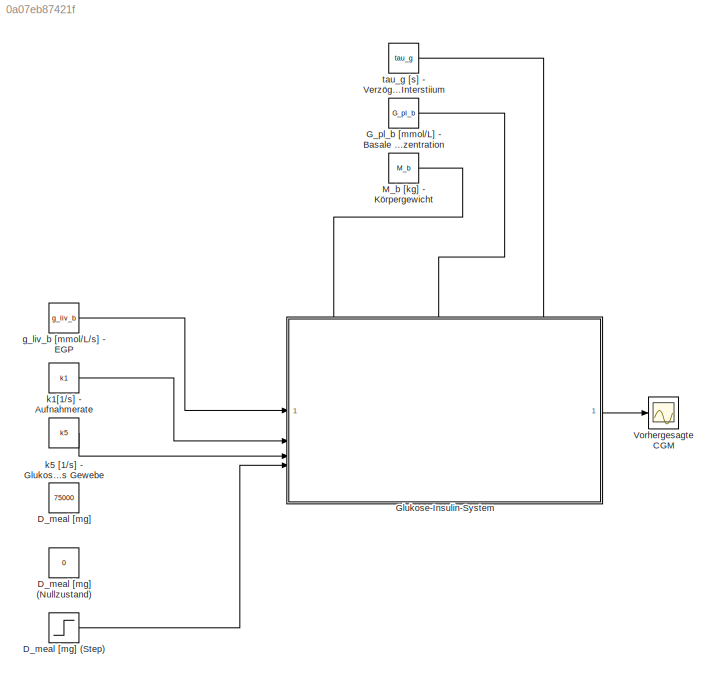
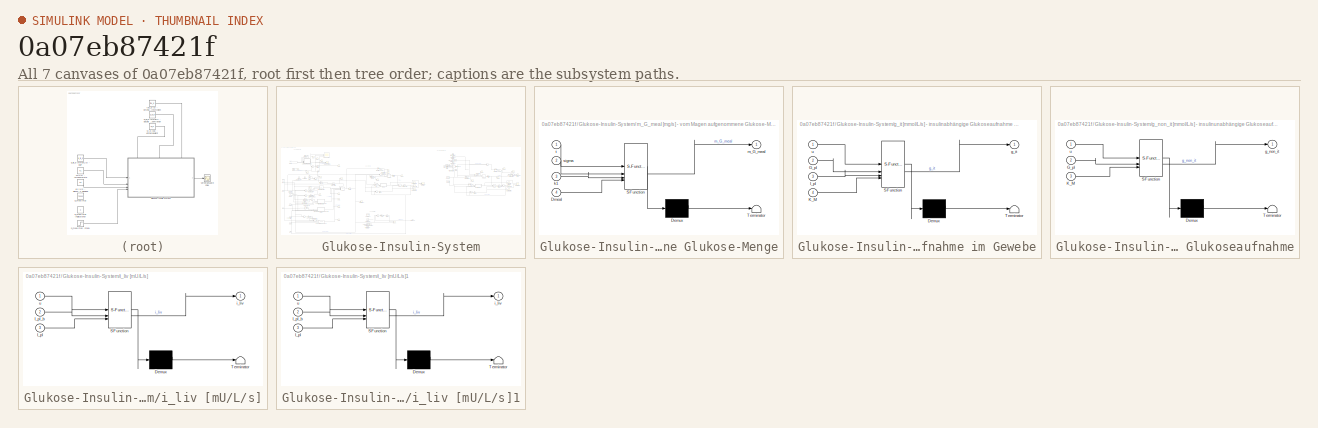
[diagram: thumbnail index - all 7 canvases of the model, root first then tree order]
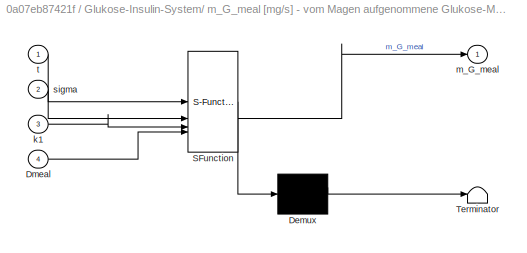
MODEL slx_0a07eb87421f
KIND model
CONFIG AbsTol = auto
CONFIG EnableMultiTasking = off
CONFIG FixedStep = auto
CONFIG MaxStep = auto
CONFIG MinStep = auto
CONFIG RelTol = 1e-3
CONFIG SampleTimeConstraint = Unconstrained
CONFIG SolverName = VariableStepAuto
CONFIG StartTime = 0.0
CONFIG StopTime = 24*3600
BLOCK [Constant] D_meal [mg]
  Value = 75000
BLOCK [Constant] D_meal [mg] (Nullzustand)
  Value = 0
BLOCK [Step] D_meal [mg] (Step)
  After = 75000
  SampleTime = 0
BLOCK [Constant] G_pl_b [mmol//L] - Basale Glukosekonzentration
  Value = G_pl_b
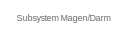
[diagram: Glukose-Insulin-System - part 1/10, top left region]
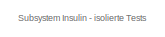
[diagram: Glukose-Insulin-System - part 2/10, top right region]
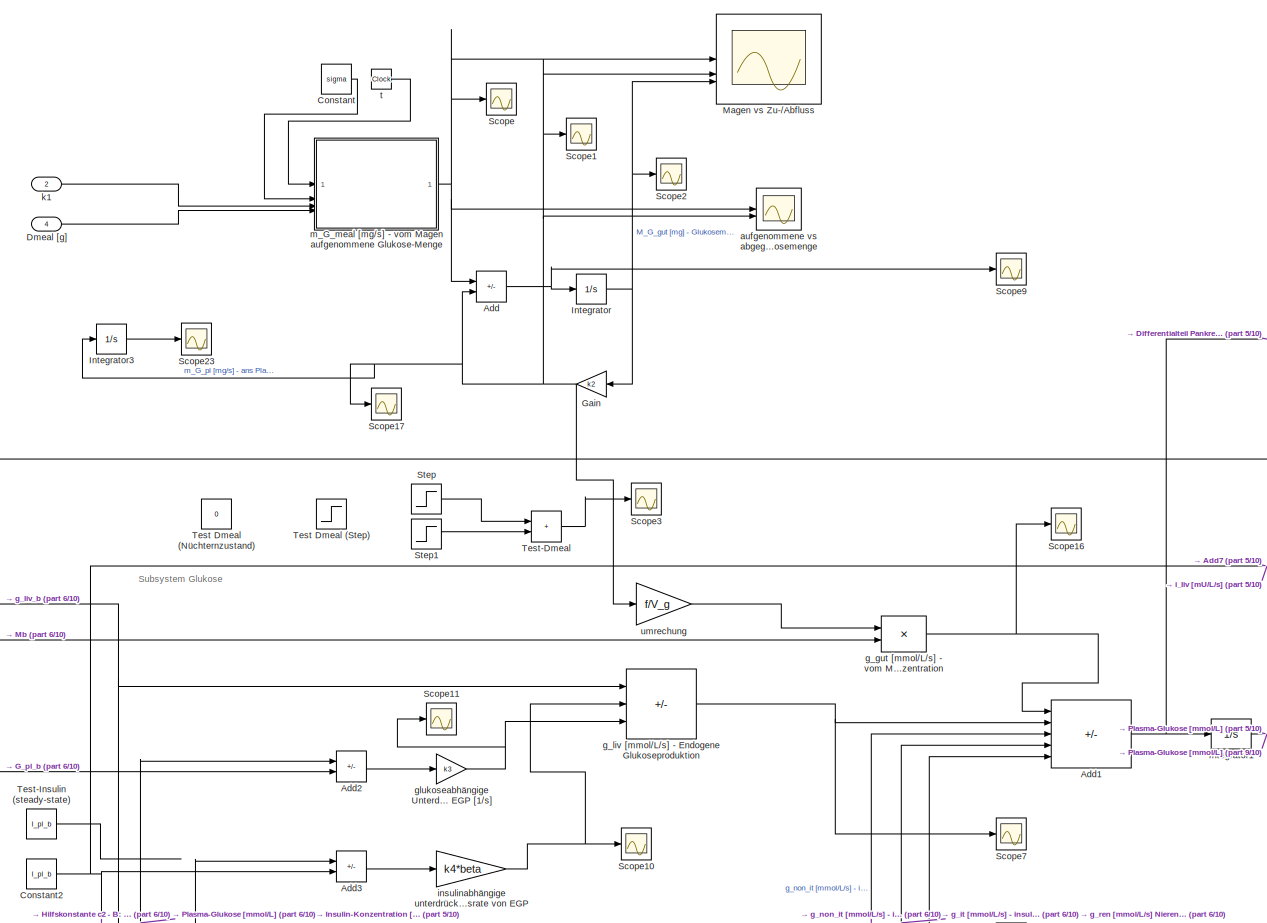
[diagram: Glukose-Insulin-System - part 3/10, top left region]
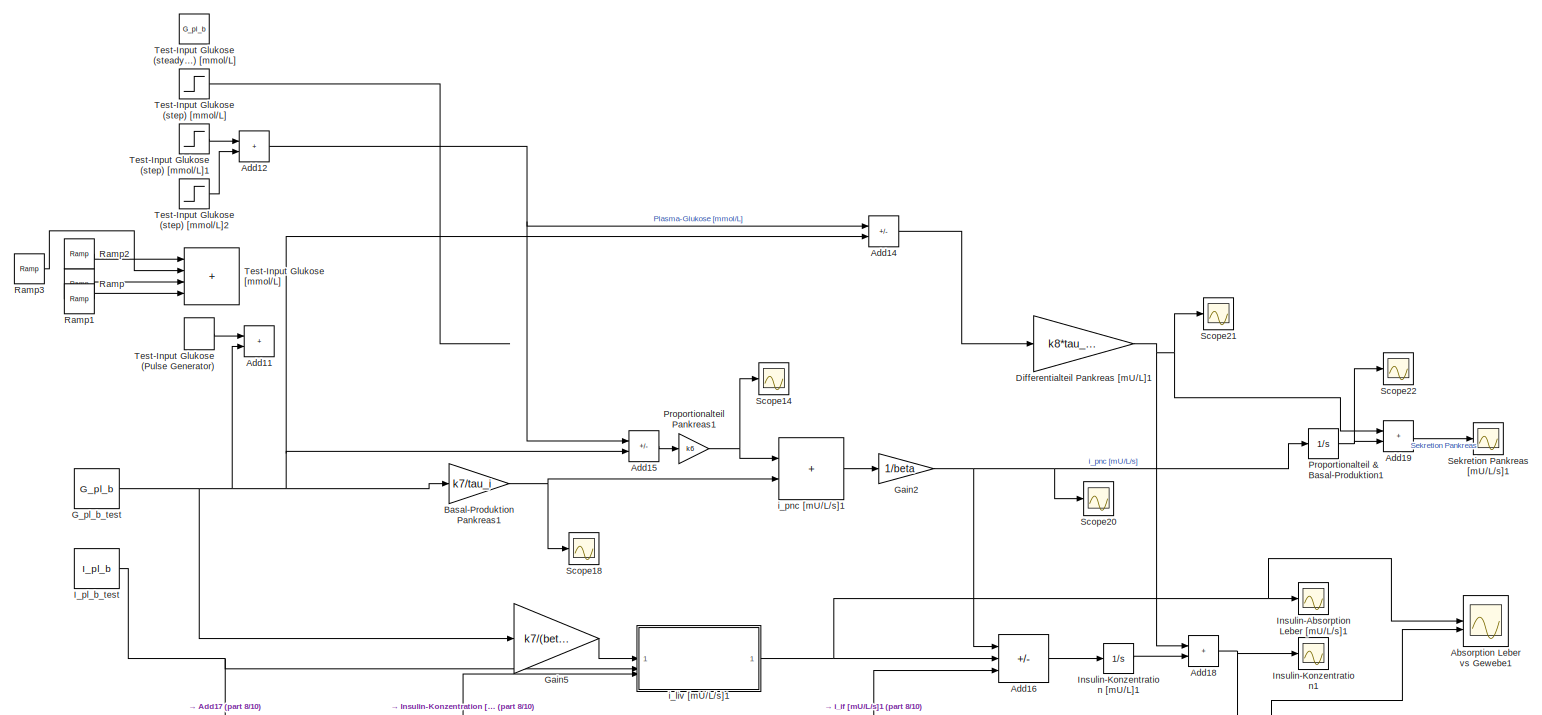
[diagram: Glukose-Insulin-System - part 4/10, top right region]
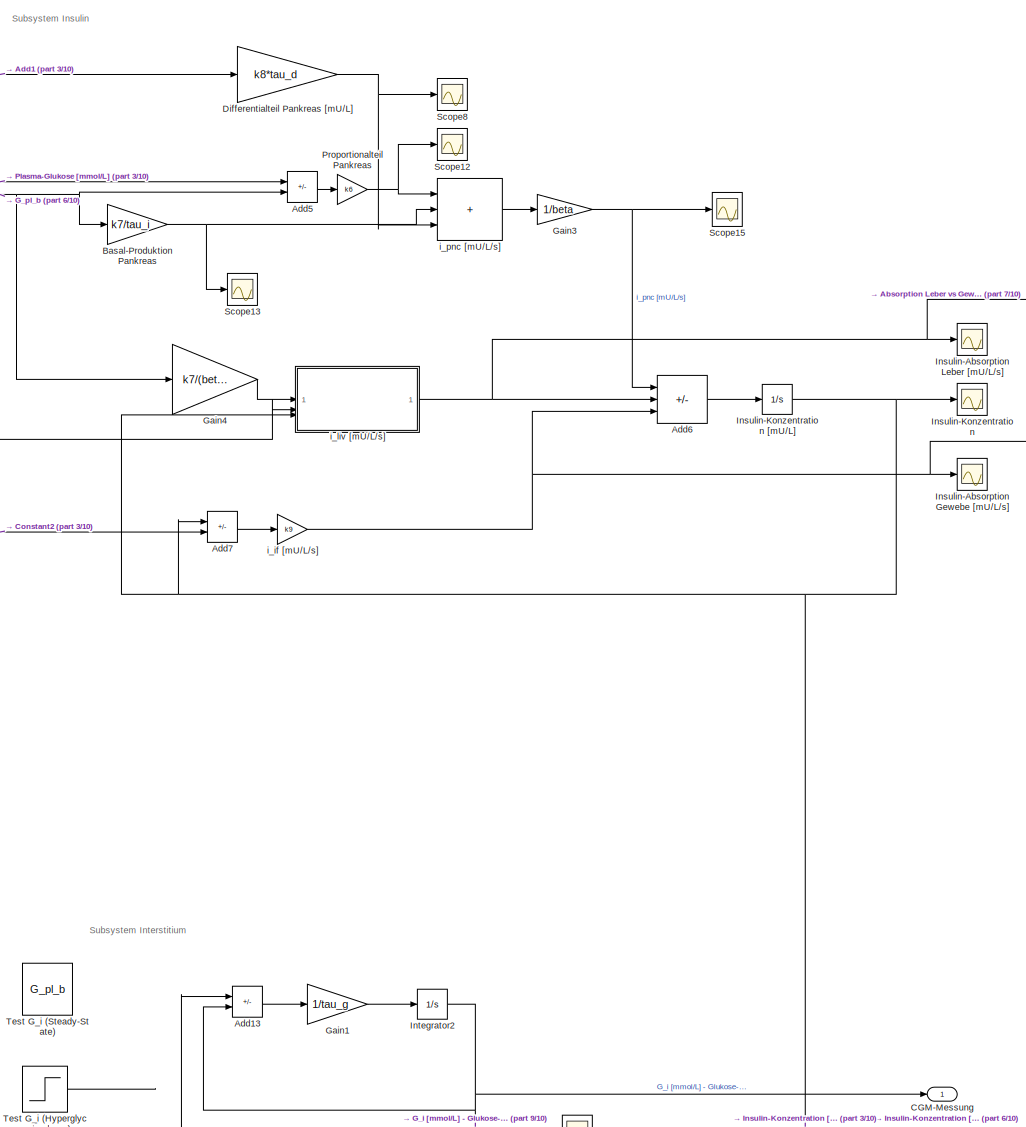
[diagram: Glukose-Insulin-System - part 5/10, central region]
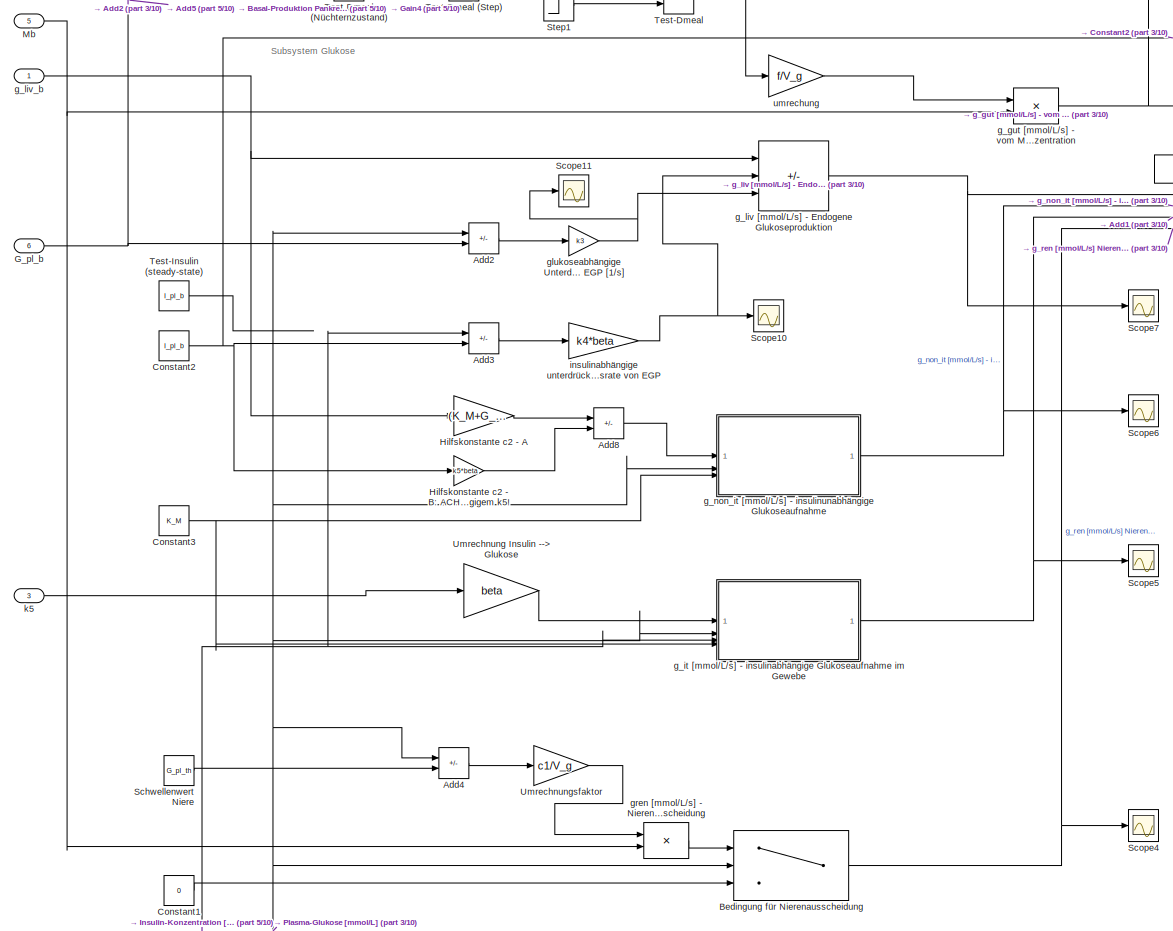
[diagram: Glukose-Insulin-System - part 6/10, middle left region]
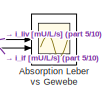
[diagram: Glukose-Insulin-System - part 7/10, central region]
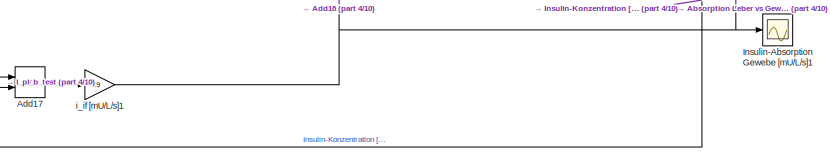
[diagram: Glukose-Insulin-System - part 8/10, middle right region]
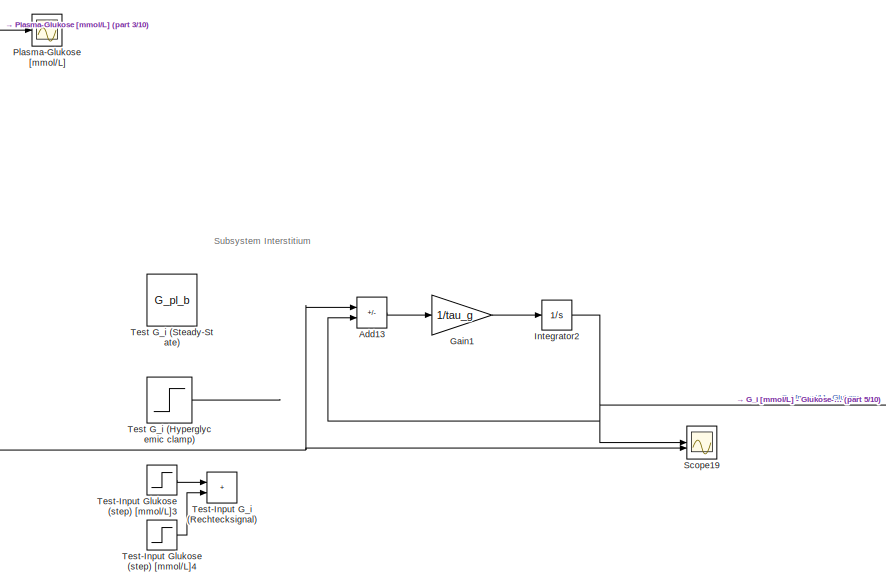
[diagram: Glukose-Insulin-System - part 9/10, bottom center region]
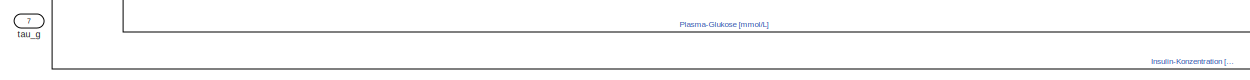
[diagram: Glukose-Insulin-System - part 10/10, bottom left region]
BLOCK [SubSystem] Glukose-Insulin-System
  PortSchema = {"entries":[{"content":{"sides":[{"content":{"connectorIds":["In1","In2","In3","In4"]},"type":"ConnectorPlacement.EquallySpacedRectSide","uuid":"b377c328-605a-4d46-a4e7-39b7223e9b7d"},{"content":{"connectorIds":["Out1"],"side":"RIGHT"},"type":"ConnectorPlacement.EquallySpacedRectSide","uuid":"aaea36f4-9533-44df-9aef-402e5d4a10bb"},{"content":{"connectorIds":["In5","In6","In7"],"side":"TOP"},"type"...<+275ch>
BLOCK [SubSystem] Glukose-Insulin-System/ m_G_meal [mg//s] - vom Magen aufgenommene Glukose-Menge
  ErrorFcn = Stateflow.Translate.translate
  PermitHierarchicalResolution = ExplicitOnly
  SFBlockType = MATLAB Function
  TreatAsAtomicUnit = on
BLOCK [Demux] Glukose-Insulin-System/ m_G_meal [mg//s] - vom Magen aufgenommene Glukose-Menge/ Demux 
  Outputs = 1
BLOCK [S-Function] Glukose-Insulin-System/ m_G_meal [mg//s] - vom Magen aufgenommene Glukose-Menge/ SFunction 
  EnableBusSupport = on
  FunctionName = sf_sfun
  PortCounts = [4 2]
  SFcnIsStateOwnerBlock = off
  SFunctionDeploymentMode = off
  Tag = Stateflow S-Function 2
BLOCK [Terminator] Glukose-Insulin-System/ m_G_meal [mg//s] - vom Magen aufgenommene Glukose-Menge/ Terminator 
BLOCK [Inport] Glukose-Insulin-System/ m_G_meal [mg//s] - vom Magen aufgenommene Glukose-Menge/Dmeal
  Port = 4
BLOCK [Inport] Glukose-Insulin-System/ m_G_meal [mg//s] - vom Magen aufgenommene Glukose-Menge/k1
  Port = 3
BLOCK [Outport] Glukose-Insulin-System/ m_G_meal [mg//s] - vom Magen aufgenommene Glukose-Menge/m_G_meal
BLOCK [Inport] Glukose-Insulin-System/ m_G_meal [mg//s] - vom Magen aufgenommene Glukose-Menge/sigma
  Port = 2
BLOCK [Inport] Glukose-Insulin-System/ m_G_meal [mg//s] - vom Magen aufgenommene Glukose-Menge/t
BLOCK [Scope] Glukose-Insulin-System/Absorption Leber vs Gewebe
  Floating = off
  NumInputPorts = 2
  ScopeSpecificationString = Simulink.scopes.TimeScopeBlockCfg('CurrentConfiguration', extmgr.ConfigurationSet(extmgr.Configuration('Core','General UI',true),extmgr.Configuration('Core','Source UI',true),extmgr.Configuration('Sources','WiredSimulink',true,'DataLoggingVariableName','ScopeData3'),extmgr.Configuration('Visuals','Time Domain',true,'SerializedDisplays',{struct('MinYLimReal','-0.00123','MaxYLimReal','0.01109','YLab...<+1891ch>
BLOCK [Scope] Glukose-Insulin-System/Absorption Leber vs Gewebe1
  Floating = off
  NumInputPorts = 2
  ScopeSpecificationString = Simulink.scopes.TimeScopeBlockCfg('CurrentConfiguration', extmgr.ConfigurationSet(extmgr.Configuration('Core','General UI',true),extmgr.Configuration('Core','Source UI',true),extmgr.Configuration('Sources','WiredSimulink',true,'DataLoggingVariableName','ScopeData1'),extmgr.Configuration('Visuals','Time Domain',true,'SerializedDisplays',{struct('MinYLimReal','-0.00478','MaxYLimReal','0.04306','YLab...<+1893ch>
BLOCK [Sum] Glukose-Insulin-System/Add
  IconShape = rectangular
  Inputs = +-
BLOCK [Sum] Glukose-Insulin-System/Add1
  IconShape = rectangular
  Inputs = ++---
BLOCK [Sum] Glukose-Insulin-System/Add11
  IconShape = rectangular
BLOCK [Sum] Glukose-Insulin-System/Add12
  IconShape = rectangular
BLOCK [Sum] Glukose-Insulin-System/Add13
  IconShape = rectangular
  Inputs = +-
BLOCK [Sum] Glukose-Insulin-System/Add14
  IconShape = rectangular
  Inputs = +-
BLOCK [Sum] Glukose-Insulin-System/Add15
  IconShape = rectangular
  Inputs = +-
BLOCK [Sum] Glukose-Insulin-System/Add16
  IconShape = rectangular
  Inputs = +--
BLOCK [Sum] Glukose-Insulin-System/Add17
  IconShape = rectangular
  Inputs = +-
BLOCK [Sum] Glukose-Insulin-System/Add18
  IconShape = rectangular
BLOCK [Sum] Glukose-Insulin-System/Add19
  IconShape = rectangular
BLOCK [Sum] Glukose-Insulin-System/Add2
  IconShape = rectangular
  Inputs = +-
BLOCK [Sum] Glukose-Insulin-System/Add3
  IconShape = rectangular
  Inputs = +-
BLOCK [Sum] Glukose-Insulin-System/Add4
  IconShape = rectangular
  Inputs = +-
BLOCK [Sum] Glukose-Insulin-System/Add5
  IconShape = rectangular
  Inputs = +-
BLOCK [Sum] Glukose-Insulin-System/Add6
  IconShape = rectangular
  Inputs = +--
BLOCK [Sum] Glukose-Insulin-System/Add7
  IconShape = rectangular
  Inputs = +-
BLOCK [Sum] Glukose-Insulin-System/Add8
  IconShape = rectangular
  Inputs = +-
BLOCK [Gain] Glukose-Insulin-System/Basal-Produktion Pankreas
  Gain = k7/tau_i
BLOCK [Gain] Glukose-Insulin-System/Basal-Produktion Pankreas1
  Gain = k7/tau_i
BLOCK [Switch] Glukose-Insulin-System/Bedingung für Nierenausscheidung
  Criteria = u2 > Threshold
  InputSameDT = off
  SaturateOnIntegerOverflow = off
  Threshold = G_pl_th
BLOCK [Outport] Glukose-Insulin-System/CGM-Messung
BLOCK [Constant] Glukose-Insulin-System/Constant
  Value = sigma
BLOCK [Constant] Glukose-Insulin-System/Constant1
  Value = 0
BLOCK [Constant] Glukose-Insulin-System/Constant2
  Value = I_pl_b
BLOCK [Constant] Glukose-Insulin-System/Constant3
  Value = K_M
BLOCK [Gain] Glukose-Insulin-System/Differentialteil Pankreas [mU//L]
  Gain = k8*tau_d
BLOCK [Gain] Glukose-Insulin-System/Differentialteil Pankreas [mU//L]1
  Gain = k8*tau_d/beta
BLOCK [Inport] Glukose-Insulin-System/Dmeal [g]
  Port = 4
BLOCK [Inport] Glukose-Insulin-System/G_pl_b
  Port = 6
BLOCK [Constant] Glukose-Insulin-System/G_pl_b_test
  Value = G_pl_b
BLOCK [Gain] Glukose-Insulin-System/Gain
  Gain = k2
BLOCK [Gain] Glukose-Insulin-System/Gain1
  Gain = 1/tau_g
BLOCK [Gain] Glukose-Insulin-System/Gain2
  Gain = 1/beta
BLOCK [Gain] Glukose-Insulin-System/Gain3
  Gain = 1/beta
BLOCK [Gain] Glukose-Insulin-System/Gain4
  Gain = k7/(beta*tau_i)
BLOCK [Gain] Glukose-Insulin-System/Gain5
  Gain = k7/(beta*tau_i)
BLOCK [Gain] Glukose-Insulin-System/Hilfskonstante c2 - A
  Gain = (K_M+G_pl_b)/G_pl_b
BLOCK [Gain] Glukose-Insulin-System/Hilfskonstante c2 - B: ACHTUNG bei zeitabhängigem k5!
  Gain = k5*beta
BLOCK [Constant] Glukose-Insulin-System/I_pl_b_test
  Value = I_pl_b
BLOCK [Scope] Glukose-Insulin-System/Insulin-Absorption Gewebe [mU//L//s]
  Floating = off
  NumInputPorts = 1
  ScopeSpecificationString = Simulink.scopes.TimeScopeBlockCfg('CurrentConfiguration', extmgr.ConfigurationSet(extmgr.Configuration('Core','General UI',true),extmgr.Configuration('Core','Source UI',true),extmgr.Configuration('Sources','WiredSimulink',true,'DataLoggingVariableName','ScopeData14'),extmgr.Configuration('Visuals','Time Domain',true,'SerializedDisplays',{struct('MinYLimReal','-0.00168','MaxYLimReal','0.00611','YLa...<+1491ch>
BLOCK [Scope] Glukose-Insulin-System/Insulin-Absorption Gewebe [mU//L//s]1
  Floating = off
  NumInputPorts = 1
  ScopeSpecificationString = Simulink.scopes.TimeScopeBlockCfg('CurrentConfiguration', extmgr.ConfigurationSet(extmgr.Configuration('Core','General UI',true),extmgr.Configuration('Core','Source UI',true),extmgr.Configuration('Sources','WiredSimulink',true,'DataLoggingVariableName','ScopeData2'),extmgr.Configuration('Visuals','Time Domain',true,'SerializedDisplays',{struct('MinYLimReal','-0.00168','MaxYLimReal','0.00611','YLab...<+1490ch>
BLOCK [Scope] Glukose-Insulin-System/Insulin-Absorption Leber [mU//L//s]
  Floating = off
  NumInputPorts = 1
  ScopeSpecificationString = Simulink.scopes.TimeScopeBlockCfg('CurrentConfiguration', extmgr.ConfigurationSet(extmgr.Configuration('Core','General UI',true),extmgr.Configuration('Core','Source UI',true),extmgr.Configuration('Sources','WiredSimulink',true,'DataLoggingVariableName','ScopeData15'),extmgr.Configuration('Visuals','Time Domain',true,'SerializedDisplays',{struct('MinYLimReal','-0.00002','MaxYLimReal','0.00032','YLa...<+1494ch>
BLOCK [Scope] Glukose-Insulin-System/Insulin-Absorption Leber [mU//L//s]1
  Floating = off
  NumInputPorts = 1
  ScopeSpecificationString = Simulink.scopes.TimeScopeBlockCfg('CurrentConfiguration', extmgr.ConfigurationSet(extmgr.Configuration('Core','General UI',true),extmgr.Configuration('Core','Source UI',true),extmgr.Configuration('Sources','WiredSimulink',true,'DataLoggingVariableName','ScopeData3'),extmgr.Configuration('Visuals','Time Domain',true,'SerializedDisplays',{struct('MinYLimReal','-0.00002','MaxYLimReal','0.00032','YLab...<+1493ch>
BLOCK [Scope] Glukose-Insulin-System/Insulin-Konzentration
  Floating = off
  NumInputPorts = 1
  ScopeSpecificationString = Simulink.scopes.TimeScopeBlockCfg('CurrentConfiguration', extmgr.ConfigurationSet(extmgr.Configuration('Core','General UI',true),extmgr.Configuration('Core','Source UI',true),extmgr.Configuration('Sources','WiredSimulink',true,'DataLoggingVariableName','ScopeData12'),extmgr.Configuration('Visuals','Time Domain',true,'SerializedDisplays',{struct('MinYLimReal','-0.34918','MaxYLimReal','68.0835','YLa...<+1954ch>
BLOCK [Integrator] Glukose-Insulin-System/Insulin-Konzentration [mU//L]
  InitialCondition = I_pl_b
BLOCK [Integrator] Glukose-Insulin-System/Insulin-Konzentration [mU//L]1
  InitialCondition = I_pl_b
BLOCK [Scope] Glukose-Insulin-System/Insulin-Konzentration1
  Floating = off
  NumInputPorts = 1
  ScopeSpecificationString = Simulink.scopes.TimeScopeBlockCfg('CurrentConfiguration', extmgr.ConfigurationSet(extmgr.Configuration('Core','General UI',true),extmgr.Configuration('Core','Source UI',true),extmgr.Configuration('Sources','WiredSimulink',true,'DataLoggingVariableName','ScopeData4'),extmgr.Configuration('Visuals','Time Domain',true,'SerializedDisplays',{struct('MinYLimReal','-20.08119','MaxYLimReal','245.73069','Y...<+1891ch>
BLOCK [Integrator] Glukose-Insulin-System/Integrator
BLOCK [Integrator] Glukose-Insulin-System/Integrator1
  InitialCondition = G_pl_b
BLOCK [Integrator] Glukose-Insulin-System/Integrator2
  InitialCondition = G_pl_b
BLOCK [Integrator] Glukose-Insulin-System/Integrator3
BLOCK [Scope] Glukose-Insulin-System/Magen vs Zu-//Abfluss
  Floating = off
  NumInputPorts = 3
  ScopeSpecificationString = Simulink.scopes.TimeScopeBlockCfg('CurrentConfiguration', extmgr.ConfigurationSet(extmgr.Configuration('Core','General UI',true),extmgr.Configuration('Core','Source UI',true),extmgr.Configuration('Sources','WiredSimulink',true,'DataLoggingVariableName','ScopeData4'),extmgr.Configuration('Visuals','Time Domain',true,'SerializedDisplays',{struct('MinYLimReal','-146.5025','MaxYLimReal','1318.52251','...<+1979ch>
BLOCK [Inport] Glukose-Insulin-System/Mb
  Port = 5
BLOCK [Scope] Glukose-Insulin-System/Plasma-Glukose [mmol//L]
  Floating = off
  NumInputPorts = 1
  ScopeSpecificationString = Simulink.scopes.TimeScopeBlockCfg('CurrentConfiguration', extmgr.ConfigurationSet(extmgr.Configuration('Core','General UI',true),extmgr.Configuration('Core','Source UI',true),extmgr.Configuration('Sources','WiredSimulink',true,'DataLoggingVariableName','ScopeData7'),extmgr.Configuration('Visuals','Time Domain',true,'SerializedDisplays',{struct('MinYLimReal','3.99359','MaxYLimReal','6.36263','YLabe...<+2041ch>
BLOCK [Integrator] Glukose-Insulin-System/Proportionalteil & Basal-Produktion1
BLOCK [Gain] Glukose-Insulin-System/Proportionalteil Pankreas
  Gain = k6
BLOCK [Gain] Glukose-Insulin-System/Proportionalteil Pankreas1
  Gain = k6
BLOCK [Reference] Glukose-Insulin-System/Ramp  REF=simulink/Sources/Ramp
  SourceBlock = simulink/Sources/Ramp
  SourceType = Ramp
BLOCK [Reference] Glukose-Insulin-System/Ramp1  REF=simulink/Sources/Ramp
  SourceBlock = simulink/Sources/Ramp
  SourceType = Ramp
BLOCK [Reference] Glukose-Insulin-System/Ramp2  REF=simulink/Sources/Ramp
  SourceBlock = simulink/Sources/Ramp
  SourceType = Ramp
BLOCK [Reference] Glukose-Insulin-System/Ramp3  REF=simulink/Sources/Ramp
  SourceBlock = simulink/Sources/Ramp
  SourceType = Ramp
BLOCK [Constant] Glukose-Insulin-System/Schwellenwert Niere
  Value = G_pl_th
BLOCK [Scope] Glukose-Insulin-System/Scope
  Floating = off
  NumInputPorts = 1
  ScopeSpecificationString = Simulink.scopes.TimeScopeBlockCfg('CurrentConfiguration', extmgr.ConfigurationSet(extmgr.Configuration('Core','General UI',true),extmgr.Configuration('Core','Source UI',true),extmgr.Configuration('Sources','WiredSimulink',true,'DataLoggingVariableName','ScopeData2'),extmgr.Configuration('Visuals','Time Domain',true,'SerializedDisplays',{struct('MinYLimReal','-0.99019','MaxYLimReal','8.9117','YLabe...<+1518ch>
BLOCK [Scope] Glukose-Insulin-System/Scope1
  Floating = off
  NumInputPorts = 1
  ScopeSpecificationString = Simulink.scopes.TimeScopeBlockCfg('CurrentConfiguration', extmgr.ConfigurationSet(extmgr.Configuration('Core','General UI',true),extmgr.Configuration('Core','Source UI',true),extmgr.Configuration('Sources','WiredSimulink',true,'DataLoggingVariableName','ScopeData3'),extmgr.Configuration('Visuals','Time Domain',true,'SerializedDisplays',{struct('MinYLimReal','-0.98992','MaxYLimReal','8.90927','YLab...<+1560ch>
BLOCK [Scope] Glukose-Insulin-System/Scope10
  Floating = off
  NumInputPorts = 1
  ScopeSpecificationString = Simulink.scopes.TimeScopeBlockCfg('CurrentConfiguration', extmgr.ConfigurationSet(extmgr.Configuration('Core','General UI',true),extmgr.Configuration('Core','Source UI',true),extmgr.Configuration('Sources','WiredSimulink',true,'DataLoggingVariableName','ScopeData1'),extmgr.Configuration('Visuals','Time Domain',true,'SerializedDisplays',{struct('MinYLimReal','-0.00011','MaxYLimReal','0.00103','YLab...<+1701ch>
BLOCK [Scope] Glukose-Insulin-System/Scope11
  Floating = off
  NumInputPorts = 1
  ScopeSpecificationString = Simulink.scopes.TimeScopeBlockCfg('CurrentConfiguration', extmgr.ConfigurationSet(extmgr.Configuration('Core','General UI',true),extmgr.Configuration('Core','Source UI',true),extmgr.Configuration('Sources','WiredSimulink',true,'DataLoggingVariableName','ScopeData2'),extmgr.Configuration('Visuals','Time Domain',true,'SerializedDisplays',{struct('MinYLimReal','-0.0000005','MaxYLimReal','0.0000022','...<+1595ch>
BLOCK [Scope] Glukose-Insulin-System/Scope12
  Floating = off
  NumInputPorts = 1
  ScopeSpecificationString = Simulink.scopes.TimeScopeBlockCfg('CurrentConfiguration', extmgr.ConfigurationSet(extmgr.Configuration('Core','General UI',true),extmgr.Configuration('Core','Source UI',true),extmgr.Configuration('Sources','WiredSimulink',true,'DataLoggingVariableName','ScopeData16'),extmgr.Configuration('Visuals','Time Domain',true,'SerializedDisplays',{struct('MinYLimReal','-0.00559','MaxYLimReal','0.02526','YLa...<+1684ch>
BLOCK [Scope] Glukose-Insulin-System/Scope13
  Floating = off
  NumInputPorts = 1
  ScopeSpecificationString = Simulink.scopes.TimeScopeBlockCfg('CurrentConfiguration', extmgr.ConfigurationSet(extmgr.Configuration('Core','General UI',true),extmgr.Configuration('Core','Source UI',true),extmgr.Configuration('Sources','WiredSimulink',true,'DataLoggingVariableName','ScopeData17'),extmgr.Configuration('Visuals','Time Domain',true,'SerializedDisplays',{struct('MinYLimReal','0.000041','MaxYLimReal','0.000061','YL...<+1974ch>
BLOCK [Scope] Glukose-Insulin-System/Scope14
  Floating = off
  NumInputPorts = 1
  ScopeSpecificationString = Simulink.scopes.TimeScopeBlockCfg('CurrentConfiguration', extmgr.ConfigurationSet(extmgr.Configuration('Core','General UI',true),extmgr.Configuration('Core','Source UI',true),extmgr.Configuration('Sources','WiredSimulink',true,'DataLoggingVariableName','ScopeData5'),extmgr.Configuration('Visuals','Time Domain',true,'SerializedDisplays',{struct('MinYLimReal','-0.00437','MaxYLimReal','0.01394','YLab...<+1683ch>
BLOCK [Scope] Glukose-Insulin-System/Scope15
  Floating = off
  NumInputPorts = 1
  ScopeSpecificationString = Simulink.scopes.TimeScopeBlockCfg('CurrentConfiguration', extmgr.ConfigurationSet(extmgr.Configuration('Core','General UI',true),extmgr.Configuration('Core','Source UI',true),extmgr.Configuration('Sources','WiredSimulink',true,'DataLoggingVariableName','ScopeData3'),extmgr.Configuration('Visuals','Time Domain',true,'SerializedDisplays',{struct('MinYLimReal','-0.00914','MaxYLimReal','0.04233','YLab...<+1929ch>
BLOCK [Scope] Glukose-Insulin-System/Scope16
  Floating = off
  NumInputPorts = 1
  ScopeSpecificationString = Simulink.scopes.TimeScopeBlockCfg('CurrentConfiguration', extmgr.ConfigurationSet(extmgr.Configuration('Core','General UI',true),extmgr.Configuration('Core','Source UI',true),extmgr.Configuration('Sources','WiredSimulink',true,'DataLoggingVariableName','ScopeData4'),extmgr.Configuration('Visuals','Time Domain',true,'SerializedDisplays',{struct('MinYLimReal','-0.00047','MaxYLimReal','0.00424','YLab...<+1983ch>
BLOCK [Scope] Glukose-Insulin-System/Scope17
  Floating = off
  NumInputPorts = 1
  ScopeSpecificationString = Simulink.scopes.TimeScopeBlockCfg('CurrentConfiguration', extmgr.ConfigurationSet(extmgr.Configuration('Core','General UI',true),extmgr.Configuration('Core','Source UI',true),extmgr.Configuration('Sources','WiredSimulink',true,'DataLoggingVariableName','ScopeData5'),extmgr.Configuration('Visuals','Time Domain',true,'SerializedDisplays',{struct('MinYLimReal','-1.54566','MaxYLimReal','13.91097','YLa...<+1899ch>
BLOCK [Scope] Glukose-Insulin-System/Scope18
  Floating = off
  NumInputPorts = 1
  ScopeSpecificationString = Simulink.scopes.TimeScopeBlockCfg('CurrentConfiguration', extmgr.ConfigurationSet(extmgr.Configuration('Core','General UI',true),extmgr.Configuration('Core','Source UI',true),extmgr.Configuration('Sources','WiredSimulink',true,'DataLoggingVariableName','ScopeData6'),extmgr.Configuration('Visuals','Time Domain',true,'SerializedDisplays',{struct('MinYLimReal','0.000041','MaxYLimReal','0.000061','YLa...<+1973ch>
BLOCK [Scope] Glukose-Insulin-System/Scope19
  Floating = off
  NumInputPorts = 2
  ScopeSpecificationString = Simulink.scopes.TimeScopeBlockCfg('CurrentConfiguration', extmgr.ConfigurationSet(extmgr.Configuration('Core','General UI',true),extmgr.Configuration('Core','Source UI',true),extmgr.Configuration('Sources','WiredSimulink',true,'DataLoggingVariableName','ScopeData2'),extmgr.Configuration('Visuals','Time Domain',true,'SerializedDisplays',{struct('MinYLimReal','6.92294','MaxYLimReal','6.9674','YLabel...<+2002ch>
BLOCK [Scope] Glukose-Insulin-System/Scope2
  Floating = off
  NumInputPorts = 1
  ScopeSpecificationString = Simulink.scopes.TimeScopeBlockCfg('CurrentConfiguration', extmgr.ConfigurationSet(extmgr.Configuration('Core','General UI',true),extmgr.Configuration('Core','Source UI',true),extmgr.Configuration('Sources','WiredSimulink',true,'DataLoggingVariableName','ScopeData1'),extmgr.Configuration('Visuals','Time Domain',true,'SerializedDisplays',{struct('MinYLimReal','-93.83118','MaxYLimReal','844.48066','Y...<+1515ch>
BLOCK [Scope] Glukose-Insulin-System/Scope20
  Floating = off
  NumInputPorts = 1
  ScopeSpecificationString = Simulink.scopes.TimeScopeBlockCfg('CurrentConfiguration', extmgr.ConfigurationSet(extmgr.Configuration('Core','General UI',true),extmgr.Configuration('Core','Source UI',true),extmgr.Configuration('Sources','WiredSimulink',true,'DataLoggingVariableName','ScopeData7'),extmgr.Configuration('Visuals','Time Domain',true,'SerializedDisplays',{struct('MinYLimReal','-0.00432','MaxYLimReal','0.01399','YLab...<+1625ch>
BLOCK [Scope] Glukose-Insulin-System/Scope21
  Floating = off
  NumInputPorts = 1
  ScopeSpecificationString = Simulink.scopes.TimeScopeBlockCfg('CurrentConfiguration', extmgr.ConfigurationSet(extmgr.Configuration('Core','General UI',true),extmgr.Configuration('Core','Source UI',true),extmgr.Configuration('Sources','WiredSimulink',true,'DataLoggingVariableName','ScopeData8'),extmgr.Configuration('Visuals','Time Domain',true,'SerializedDisplays',{struct('MinYLimReal','-6.36458','MaxYLimReal','20.30002','YLa...<+1694ch>
BLOCK [Scope] Glukose-Insulin-System/Scope22
  Floating = off
  NumInputPorts = 1
  ScopeSpecificationString = Simulink.scopes.TimeScopeBlockCfg('CurrentConfiguration', extmgr.ConfigurationSet(extmgr.Configuration('Core','General UI',true),extmgr.Configuration('Core','Source UI',true),extmgr.Configuration('Sources','WiredSimulink',true,'DataLoggingVariableName','ScopeData9'),extmgr.Configuration('Visuals','Time Domain',true,'SerializedDisplays',{struct('MinYLimReal','-52.65693','MaxYLimReal','47.86931','YL...<+1652ch>
BLOCK [Scope] Glukose-Insulin-System/Scope23
  Floating = off
  NumInputPorts = 1
  ScopeSpecificationString = Simulink.scopes.TimeScopeBlockCfg('CurrentConfiguration', extmgr.ConfigurationSet(extmgr.Configuration('Core','General UI',true),extmgr.Configuration('Core','Source UI',true),extmgr.Configuration('Sources','WiredSimulink',true,'DataLoggingVariableName','ScopeData1'),extmgr.Configuration('Visuals','Time Domain',true,'SerializedDisplays',{struct('MinYLimReal','-9374.88287','MaxYLimReal','84373.94586...<+1790ch>
BLOCK [Scope] Glukose-Insulin-System/Scope3
  Floating = off
  NumInputPorts = 1
  ScopeSpecificationString = Simulink.scopes.TimeScopeBlockCfg('CurrentConfiguration', extmgr.ConfigurationSet(extmgr.Configuration('Core','General UI',true),extmgr.Configuration('Core','Source UI',true),extmgr.Configuration('Sources','WiredSimulink',true,'DataLoggingVariableName','ScopeData6'),extmgr.Configuration('Visuals','Time Domain',true,'SerializedDisplays',{struct('MinYLimReal','-0.78125','MaxYLimReal','7.03125','YLab...<+1489ch>
BLOCK [Scope] Glukose-Insulin-System/Scope4
  Floating = off
  NumInputPorts = 1
  ScopeSpecificationString = Simulink.scopes.TimeScopeBlockCfg('CurrentConfiguration', extmgr.ConfigurationSet(extmgr.Configuration('Core','General UI',true),extmgr.Configuration('Core','Source UI',true),extmgr.Configuration('Sources','WiredSimulink',true,'DataLoggingVariableName','ScopeData8'),extmgr.Configuration('Visuals','Time Domain',true,'SerializedDisplays',{struct('MinYLimReal','-1.00000','MaxYLimReal','1.00000','YLab...<+1564ch>
BLOCK [Scope] Glukose-Insulin-System/Scope5
  Floating = off
  NumInputPorts = 1
  ScopeSpecificationString = Simulink.scopes.TimeScopeBlockCfg('CurrentConfiguration', extmgr.ConfigurationSet(extmgr.Configuration('Core','General UI',true),extmgr.Configuration('Core','Source UI',true),extmgr.Configuration('Sources','WiredSimulink',true,'DataLoggingVariableName','ScopeData9'),extmgr.Configuration('Visuals','Time Domain',true,'SerializedDisplays',{struct('MinYLimReal','-0.00003','MaxYLimReal','0.00395','YLab...<+1887ch>
BLOCK [Scope] Glukose-Insulin-System/Scope6
  Floating = off
  NumInputPorts = 1
  ScopeSpecificationString = Simulink.scopes.TimeScopeBlockCfg('CurrentConfiguration', extmgr.ConfigurationSet(extmgr.Configuration('Core','General UI',true),extmgr.Configuration('Core','Source UI',true),extmgr.Configuration('Sources','WiredSimulink',true,'DataLoggingVariableName','ScopeData10'),extmgr.Configuration('Visuals','Time Domain',true,'SerializedDisplays',{struct('MinYLimReal','0.000348','MaxYLimReal','0.000367','YL...<+1619ch>
BLOCK [Scope] Glukose-Insulin-System/Scope7
  Floating = off
  NumInputPorts = 1
  ScopeSpecificationString = Simulink.scopes.TimeScopeBlockCfg('CurrentConfiguration', extmgr.ConfigurationSet(extmgr.Configuration('Core','General UI',true),extmgr.Configuration('Core','Source UI',true),extmgr.Configuration('Sources','WiredSimulink',true,'DataLoggingVariableName','ScopeData11'),extmgr.Configuration('Visuals','Time Domain',true,'SerializedDisplays',{struct('MinYLimReal','-0.00029','MaxYLimReal','0.00077','YLa...<+1955ch>
BLOCK [Scope] Glukose-Insulin-System/Scope8
  Floating = off
  NumInputPorts = 1
  ScopeSpecificationString = Simulink.scopes.TimeScopeBlockCfg('CurrentConfiguration', extmgr.ConfigurationSet(extmgr.Configuration('Core','General UI',true),extmgr.Configuration('Core','Source UI',true),extmgr.Configuration('Sources','WiredSimulink',true,'DataLoggingVariableName','ScopeData2'),extmgr.Configuration('Visuals','Time Domain',true,'SerializedDisplays',{struct('MinYLimReal','-0.01587','MaxYLimReal','0.03306','YLab...<+1690ch>
BLOCK [Scope] Glukose-Insulin-System/Scope9
  Floating = off
  NumInputPorts = 1
  ScopeSpecificationString = Simulink.scopes.TimeScopeBlockCfg('CurrentConfiguration', extmgr.ConfigurationSet(extmgr.Configuration('Core','General UI',true),extmgr.Configuration('Core','Source UI',true),extmgr.Configuration('Sources','WiredSimulink',true,'DataLoggingVariableName','ScopeData1'),extmgr.Configuration('Visuals','Time Domain',true,'SerializedDisplays',{struct('MinYLimReal','-0.59467','MaxYLimReal','3.59143','YLab...<+1871ch>
BLOCK [Scope] Glukose-Insulin-System/Sekretion Pankreas [mU//L//s]1
  Floating = off
  NumInputPorts = 1
  ScopeSpecificationString = Simulink.scopes.TimeScopeBlockCfg('CurrentConfiguration', extmgr.ConfigurationSet(extmgr.Configuration('Core','General UI',true),extmgr.Configuration('Core','Source UI',true),extmgr.Configuration('Sources','WiredSimulink',true,'DataLoggingVariableName','ScopeData10'),extmgr.Configuration('Visuals','Time Domain',true,'SerializedDisplays',{struct('MinYLimReal','-34.83592','MaxYLimReal','81.31692','Y...<+1987ch>
BLOCK [Step] Glukose-Insulin-System/Step
  After = 6.25
  SampleTime = 0
  Time = 100
BLOCK [Step] Glukose-Insulin-System/Step1
  After = -6.25
  SampleTime = 12100
  Time = 12100
BLOCK [Constant] Glukose-Insulin-System/Test Dmeal (Nüchternzustand)
  Value = 0
BLOCK [Step] Glukose-Insulin-System/Test Dmeal (Step)
  After = 0.6
  SampleTime = 0
  Time = 0
BLOCK [Step] Glukose-Insulin-System/Test G_i (Hyperglycemic clamp)
  After = 10
  Before = G_pl_b
  SampleTime = 0
  Time = 0
BLOCK [Constant] Glukose-Insulin-System/Test G_i (Steady-State)
  Value = G_pl_b
BLOCK [Sum] Glukose-Insulin-System/Test-Dmeal
  IconShape = rectangular
BLOCK [Sum] Glukose-Insulin-System/Test-Input G_i (Rechtecksignal)
  IconShape = rectangular
BLOCK [Sum] Glukose-Insulin-System/Test-Input Glukose  [mmol//L]
  IconShape = rectangular
  Inputs = ++++
BLOCK [DiscretePulseGenerator] Glukose-Insulin-System/Test-Input Glukose (Pulse Generator)
  Amplitude = 10
  Period = 14400
  PulseType = Time based
  PulseWidth = 8
BLOCK [Constant] Glukose-Insulin-System/Test-Input Glukose (steadystate) [mmol//L]
  Value = G_pl_b
BLOCK [Step] Glukose-Insulin-System/Test-Input Glukose (step) [mmol//L]
  After = 10
  Before = G_pl_b
  SampleTime = 0
  Time = 100
BLOCK [Step] Glukose-Insulin-System/Test-Input Glukose (step) [mmol//L]1
  After = 10
  Before = G_pl_b
  SampleTime = 0
  Time = 100
BLOCK [Step] Glukose-Insulin-System/Test-Input Glukose (step) [mmol//L]2
  After = -(10-G_pl_b)
  SampleTime = 0
  Time = 7300
BLOCK [Step] Glukose-Insulin-System/Test-Input Glukose (step) [mmol//L]3
  After = 15
  Before = G_pl_b
  SampleTime = 0
  Time = 100
BLOCK [Step] Glukose-Insulin-System/Test-Input Glukose (step) [mmol//L]4
  After = -(15-G_pl_b)
  SampleTime = 0
  Time = 7300
BLOCK [Constant] Glukose-Insulin-System/Test-Insulin (steady-state)
  Value = I_pl_b
BLOCK [Gain] Glukose-Insulin-System/Umrechnung Insulin --> Glukose
  Gain = beta
BLOCK [Gain] Glukose-Insulin-System/Umrechnungsfaktor
  Gain = c1/V_g
BLOCK [Scope] Glukose-Insulin-System/aufgenommene vs abgegebene Glukosemenge
  Floating = off
  NumInputPorts = 2
  ScopeSpecificationString = Simulink.scopes.TimeScopeBlockCfg('CurrentConfiguration', extmgr.ConfigurationSet(extmgr.Configuration('Core','General UI',true),extmgr.Configuration('Core','Source UI',true),extmgr.Configuration('Sources','WiredSimulink',true,'DataLoggingVariableName','ScopeData5'),extmgr.Configuration('Visuals','Time Domain',true,'SerializedDisplays',{struct('MinYLimReal','0.18846','MaxYLimReal','13.93441','YLab...<+2007ch>
BLOCK [Product] Glukose-Insulin-System/g_gut [mmol//L//s] - vom Magen aufgenommene Glukosemenge als Konzentration
  Inputs = */
  Multiplication = Matrix(*)
BLOCK [SubSystem] Glukose-Insulin-System/g_it [mmol//L//s] - insulinabhängige Glukoseaufnahme im Gewebe
  ErrorFcn = Stateflow.Translate.translate
  PermitHierarchicalResolution = ExplicitOnly
  SFBlockType = MATLAB Function
  TreatAsAtomicUnit = on
BLOCK [Demux] Glukose-Insulin-System/g_it [mmol//L//s] - insulinabhängige Glukoseaufnahme im Gewebe/ Demux 
  Outputs = 1
BLOCK [S-Function] Glukose-Insulin-System/g_it [mmol//L//s] - insulinabhängige Glukoseaufnahme im Gewebe/ SFunction 
  EnableBusSupport = on
  FunctionName = sf_sfun
  PortCounts = [4 2]
  SFcnIsStateOwnerBlock = off
  SFunctionDeploymentMode = off
  Tag = Stateflow S-Function 3
BLOCK [Terminator] Glukose-Insulin-System/g_it [mmol//L//s] - insulinabhängige Glukoseaufnahme im Gewebe/ Terminator 
BLOCK [Inport] Glukose-Insulin-System/g_it [mmol//L//s] - insulinabhängige Glukoseaufnahme im Gewebe/G_pl
  Port = 2
BLOCK [Inport] Glukose-Insulin-System/g_it [mmol//L//s] - insulinabhängige Glukoseaufnahme im Gewebe/I_pl
  Port = 3
BLOCK [Inport] Glukose-Insulin-System/g_it [mmol//L//s] - insulinabhängige Glukoseaufnahme im Gewebe/K_M
  Port = 4
BLOCK [Outport] Glukose-Insulin-System/g_it [mmol//L//s] - insulinabhängige Glukoseaufnahme im Gewebe/g_it
BLOCK [Inport] Glukose-Insulin-System/g_it [mmol//L//s] - insulinabhängige Glukoseaufnahme im Gewebe/u
BLOCK [Sum] Glukose-Insulin-System/g_liv [mmol//L//s] - Endogene Glukoseproduktion
  IconShape = rectangular
  Inputs = +--
BLOCK [Inport] Glukose-Insulin-System/g_liv_b
BLOCK [SubSystem] Glukose-Insulin-System/g_non_it [mmol//L//s] - insulinunabhängige Glukoseaufnahme
  ErrorFcn = Stateflow.Translate.translate
  PermitHierarchicalResolution = ExplicitOnly
  SFBlockType = MATLAB Function
  TreatAsAtomicUnit = on
BLOCK [Demux] Glukose-Insulin-System/g_non_it [mmol//L//s] - insulinunabhängige Glukoseaufnahme/ Demux 
  Outputs = 1
BLOCK [S-Function] Glukose-Insulin-System/g_non_it [mmol//L//s] - insulinunabhängige Glukoseaufnahme/ SFunction 
  EnableBusSupport = on
  FunctionName = sf_sfun
  PortCounts = [3 2]
  SFcnIsStateOwnerBlock = off
  SFunctionDeploymentMode = off
  Tag = Stateflow S-Function 1
BLOCK [Terminator] Glukose-Insulin-System/g_non_it [mmol//L//s] - insulinunabhängige Glukoseaufnahme/ Terminator 
BLOCK [Inport] Glukose-Insulin-System/g_non_it [mmol//L//s] - insulinunabhängige Glukoseaufnahme/G_pl
  Port = 2
BLOCK [Inport] Glukose-Insulin-System/g_non_it [mmol//L//s] - insulinunabhängige Glukoseaufnahme/K_M
  Port = 3
BLOCK [Outport] Glukose-Insulin-System/g_non_it [mmol//L//s] - insulinunabhängige Glukoseaufnahme/g_non_it
BLOCK [Inport] Glukose-Insulin-System/g_non_it [mmol//L//s] - insulinunabhängige Glukoseaufnahme/u
BLOCK [Gain] Glukose-Insulin-System/glukoseabhängige Unterdrückungsrate von EGP [1//s]
  Gain = k3
BLOCK [Product] Glukose-Insulin-System/gren [mmol//L//s] - Nierenausscheidung
  Inputs = */
  Multiplication = Matrix(*)
  NameLocation = left
BLOCK [Gain] Glukose-Insulin-System/i_if [mU//L//s]
  Gain = k9
BLOCK [Gain] Glukose-Insulin-System/i_if [mU//L//s]1
  Gain = k9
BLOCK [SubSystem] Glukose-Insulin-System/i_liv [mU//L//s]
  ErrorFcn = Stateflow.Translate.translate
  PermitHierarchicalResolution = ExplicitOnly
  SFBlockType = MATLAB Function
  TreatAsAtomicUnit = on
BLOCK [Demux] Glukose-Insulin-System/i_liv [mU//L//s]/ Demux 
  Outputs = 1
BLOCK [S-Function] Glukose-Insulin-System/i_liv [mU//L//s]/ SFunction 
  EnableBusSupport = on
  FunctionName = sf_sfun
  PortCounts = [3 2]
  SFcnIsStateOwnerBlock = off
  SFunctionDeploymentMode = off
  Tag = Stateflow S-Function 4
BLOCK [Terminator] Glukose-Insulin-System/i_liv [mU//L//s]/ Terminator 
BLOCK [Inport] Glukose-Insulin-System/i_liv [mU//L//s]/I_pl
  Port = 3
BLOCK [Inport] Glukose-Insulin-System/i_liv [mU//L//s]/I_pl_b
  Port = 2
BLOCK [Outport] Glukose-Insulin-System/i_liv [mU//L//s]/i_liv
BLOCK [Inport] Glukose-Insulin-System/i_liv [mU//L//s]/u
BLOCK [SubSystem] Glukose-Insulin-System/i_liv [mU//L//s]1
  ErrorFcn = Stateflow.Translate.translate
  PermitHierarchicalResolution = ExplicitOnly
  SFBlockType = MATLAB Function
  TreatAsAtomicUnit = on
BLOCK [Demux] Glukose-Insulin-System/i_liv [mU//L//s]1/ Demux 
  Outputs = 1
BLOCK [S-Function] Glukose-Insulin-System/i_liv [mU//L//s]1/ SFunction 
  EnableBusSupport = on
  FunctionName = sf_sfun
  PortCounts = [3 2]
  SFcnIsStateOwnerBlock = off
  SFunctionDeploymentMode = off
  Tag = Stateflow S-Function 5
BLOCK [Terminator] Glukose-Insulin-System/i_liv [mU//L//s]1/ Terminator 
BLOCK [Inport] Glukose-Insulin-System/i_liv [mU//L//s]1/I_pl
  Port = 3
BLOCK [Inport] Glukose-Insulin-System/i_liv [mU//L//s]1/I_pl_b
  Port = 2
BLOCK [Outport] Glukose-Insulin-System/i_liv [mU//L//s]1/i_liv
BLOCK [Inport] Glukose-Insulin-System/i_liv [mU//L//s]1/u
BLOCK [Sum] Glukose-Insulin-System/i_pnc [mU//L//s]
  IconShape = rectangular
  Inputs = +++
BLOCK [Sum] Glukose-Insulin-System/i_pnc [mU//L//s]1
  IconShape = rectangular
BLOCK [Gain] Glukose-Insulin-System/insulinabhängige unterdrückungsrate von EGP
  Gain = k4*beta
BLOCK [Inport] Glukose-Insulin-System/k1
  Port = 2
BLOCK [Inport] Glukose-Insulin-System/k5
  Port = 3
BLOCK [Clock] Glukose-Insulin-System/t
BLOCK [Inport] Glukose-Insulin-System/tau_g
  Port = 7
BLOCK [Gain] Glukose-Insulin-System/umrechung
  Gain = f/V_g
BLOCK [Constant] M_b [kg] - Körpergewicht
  Value = M_b
BLOCK [Scope] Vorhergesagte CGM
  Floating = off
  NumInputPorts = 1
  ScopeSpecificationString = Simulink.scopes.TimeScopeBlockCfg('CurrentConfiguration', extmgr.ConfigurationSet(extmgr.Configuration('Core','General UI',true),extmgr.Configuration('Core','Source UI',true),extmgr.Configuration('Sources','WiredSimulink',true),extmgr.Configuration('Visuals','Time Domain',true,'SerializedDisplays',{struct('MinYLimReal','4.35764','MaxYLimReal','7.51509','YLabelReal','','MinYLimMag','4.35764','MaxYL...<+1760ch>
BLOCK [Constant] g_liv_b [mmol//L//s] - EGP
  Value = g_liv_b
BLOCK [Constant] k1[1//s] - Aufnahmerate
  Value = k1
BLOCK [Constant] k5 [1//s] - Glukose-Aufnahme ins Gewebe
  Value = k5
BLOCK [Constant] tau_g [s] - Verzögerte Glukoseaufnahme im Interstiium
  NameLocation = left
  Value = tau_g
ANNOTATION Glukose-Insulin-System: Subsystem Glukose
ANNOTATION Glukose-Insulin-System: Subsystem Insulin
ANNOTATION Glukose-Insulin-System: Subsystem Insulin - isolierte Tests
ANNOTATION Glukose-Insulin-System: Subsystem Interstitium
ANNOTATION Glukose-Insulin-System: Subsystem Magen/Darm
LINE D_meal [mg] (Step):1 -> Glukose-Insulin-System:4
LINE G_pl_b [mmol//L] - Basale Glukosekonzentration:1 -> Glukose-Insulin-System:6
NET Glukose-Insulin-System/ m_G_meal [mg//s] - vom Magen aufgenommene Glukose-Menge:1 -> Glukose-Insulin-System/Add:1, Glukose-Insulin-System/Magen vs Zu-//Abfluss:1, Glukose-Insulin-System/Scope:1, Glukose-Insulin-System/aufgenommene vs abgegebene Glukosemenge:1
NET Glukose-Insulin-System/Add12:1 -> Glukose-Insulin-System/Add14:1, Glukose-Insulin-System/Add15:1
LINE Glukose-Insulin-System/Add13:1 -> Glukose-Insulin-System/Gain1:1
LINE Glukose-Insulin-System/Add14:1 -> Glukose-Insulin-System/Differentialteil Pankreas [mU//L]1:1
LINE Glukose-Insulin-System/Add15:1 -> Glukose-Insulin-System/Proportionalteil Pankreas1:1
LINE Glukose-Insulin-System/Add16:1 -> Glukose-Insulin-System/Insulin-Konzentration [mU//L]1:1
LINE Glukose-Insulin-System/Add17:1 -> Glukose-Insulin-System/i_if [mU//L//s]1:1
NET Glukose-Insulin-System/Add18:1 -> Glukose-Insulin-System/Add17:1, Glukose-Insulin-System/Insulin-Konzentration1:1, Glukose-Insulin-System/i_liv [mU//L//s]1:3
LINE Glukose-Insulin-System/Add19:1 -> Glukose-Insulin-System/Sekretion Pankreas [mU//L//s]1:1
NET Glukose-Insulin-System/Add1:1 -> Glukose-Insulin-System/Differentialteil Pankreas [mU//L]:1, Glukose-Insulin-System/Integrator1:1
LINE Glukose-Insulin-System/Add2:1 -> Glukose-Insulin-System/glukoseabhängige Unterdrückungsrate von EGP [1//s]:1
LINE Glukose-Insulin-System/Add3:1 -> Glukose-Insulin-System/insulinabhängige unterdrückungsrate von EGP:1
LINE Glukose-Insulin-System/Add4:1 -> Glukose-Insulin-System/Umrechnungsfaktor:1
LINE Glukose-Insulin-System/Add5:1 -> Glukose-Insulin-System/Proportionalteil Pankreas:1
LINE Glukose-Insulin-System/Add6:1 -> Glukose-Insulin-System/Insulin-Konzentration [mU//L]:1
LINE Glukose-Insulin-System/Add7:1 -> Glukose-Insulin-System/i_if [mU//L//s]:1
LINE Glukose-Insulin-System/Add8:1 -> Glukose-Insulin-System/g_non_it [mmol//L//s] - insulinunabhängige Glukoseaufnahme:1
NET Glukose-Insulin-System/Add:1 -> Glukose-Insulin-System/Integrator:1, Glukose-Insulin-System/Scope9:1
NET Glukose-Insulin-System/Basal-Produktion Pankreas1:1 -> Glukose-Insulin-System/Scope18:1, Glukose-Insulin-System/i_pnc [mU//L//s]1:2
NET Glukose-Insulin-System/Basal-Produktion Pankreas:1 -> Glukose-Insulin-System/Scope13:1, Glukose-Insulin-System/i_pnc [mU//L//s]:2
NET Glukose-Insulin-System/Bedingung für Nierenausscheidung:1 -> Glukose-Insulin-System/Add1:5, Glukose-Insulin-System/Scope4:1
LINE Glukose-Insulin-System/Constant1:1 -> Glukose-Insulin-System/Bedingung für Nierenausscheidung:3
NET Glukose-Insulin-System/Constant2:1 -> Glukose-Insulin-System/Add3:2, Glukose-Insulin-System/Add7:2, Glukose-Insulin-System/Hilfskonstante c2 - B: ACHTUNG bei zeitabhängigem k5!:1, Glukose-Insulin-System/i_liv [mU//L//s]:2
NET Glukose-Insulin-System/Constant3:1 -> Glukose-Insulin-System/g_it [mmol//L//s] - insulinabhängige Glukoseaufnahme im Gewebe:4, Glukose-Insulin-System/g_non_it [mmol//L//s] - insulinunabhängige Glukoseaufnahme:3
LINE Glukose-Insulin-System/Constant:1 -> Glukose-Insulin-System/ m_G_meal [mg//s] - vom Magen aufgenommene Glukose-Menge:2
NET Glukose-Insulin-System/Differentialteil Pankreas [mU//L]1:1 -> Glukose-Insulin-System/Add18:1, Glukose-Insulin-System/Add19:1, Glukose-Insulin-System/Scope21:1
NET Glukose-Insulin-System/Differentialteil Pankreas [mU//L]:1 -> Glukose-Insulin-System/Scope8:1, Glukose-Insulin-System/i_pnc [mU//L//s]:3
LINE Glukose-Insulin-System/Dmeal [g]:1 -> Glukose-Insulin-System/ m_G_meal [mg//s] - vom Magen aufgenommene Glukose-Menge:4
NET Glukose-Insulin-System/G_pl_b:1 -> Glukose-Insulin-System/Add2:2, Glukose-Insulin-System/Add5:2, Glukose-Insulin-System/Basal-Produktion Pankreas:1, Glukose-Insulin-System/Gain4:1
NET Glukose-Insulin-System/G_pl_b_test:1 -> Glukose-Insulin-System/Add11:2, Glukose-Insulin-System/Add14:2, Glukose-Insulin-System/Add15:2, Glukose-Insulin-System/Basal-Produktion Pankreas1:1, Glukose-Insulin-System/Gain5:1
LINE Glukose-Insulin-System/Gain1:1 -> Glukose-Insulin-System/Integrator2:1
NET Glukose-Insulin-System/Gain2:1 -> Glukose-Insulin-System/Add16:1, Glukose-Insulin-System/Proportionalteil & Basal-Produktion1:1, Glukose-Insulin-System/Scope20:1
NET Glukose-Insulin-System/Gain3:1 -> Glukose-Insulin-System/Add6:1, Glukose-Insulin-System/Scope15:1
LINE Glukose-Insulin-System/Gain4:1 -> Glukose-Insulin-System/i_liv [mU//L//s]:1
LINE Glukose-Insulin-System/Gain5:1 -> Glukose-Insulin-System/i_liv [mU//L//s]1:1
NET Glukose-Insulin-System/Gain:1 -> Glukose-Insulin-System/Add:2, Glukose-Insulin-System/Integrator3:1, Glukose-Insulin-System/Magen vs Zu-//Abfluss:2, Glukose-Insulin-System/Scope17:1, Glukose-Insulin-System/Scope1:1, Glukose-Insulin-System/aufgenommene vs abgegebene Glukosemenge:2, Glukose-Insulin-System/umrechung:1
LINE Glukose-Insulin-System/Hilfskonstante c2 - A:1 -> Glukose-Insulin-System/Add8:1
LINE Glukose-Insulin-System/Hilfskonstante c2 - B: ACHTUNG bei zeitabhängigem k5!:1 -> Glukose-Insulin-System/Add8:2
NET Glukose-Insulin-System/I_pl_b_test:1 -> Glukose-Insulin-System/Add17:2, Glukose-Insulin-System/i_liv [mU//L//s]1:2
LINE Glukose-Insulin-System/Insulin-Konzentration [mU//L]1:1 -> Glukose-Insulin-System/Add18:2
NET Glukose-Insulin-System/Insulin-Konzentration [mU//L]:1 -> Glukose-Insulin-System/Add3:1, Glukose-Insulin-System/Add7:1, Glukose-Insulin-System/Insulin-Konzentration:1, Glukose-Insulin-System/g_it [mmol//L//s] - insulinabhängige Glukoseaufnahme im Gewebe:3, Glukose-Insulin-System/i_liv [mU//L//s]:3
NET Glukose-Insulin-System/Integrator1:1 -> Glukose-Insulin-System/Add13:1, Glukose-Insulin-System/Add2:1, Glukose-Insulin-System/Add4:1, Glukose-Insulin-System/Add5:1, Glukose-Insulin-System/Bedingung für Nierenausscheidung:2, Glukose-Insulin-System/Plasma-Glukose [mmol//L]:1, Glukose-Insulin-System/Scope19:2, Glukose-Insulin-System/g_it [mmol//L//s] - insulinabhängige Glukoseaufnahme im Gewebe:2, Glukose-Insulin-System/g_non_it [mmol//L//s] - insulinunabhängige Glukoseaufnahme:2
NET Glukose-Insulin-System/Integrator2:1 -> Glukose-Insulin-System/Add13:2, Glukose-Insulin-System/CGM-Messung:1, Glukose-Insulin-System/Scope19:1
LINE Glukose-Insulin-System/Integrator3:1 -> Glukose-Insulin-System/Scope23:1
NET Glukose-Insulin-System/Integrator:1 -> Glukose-Insulin-System/Gain:1, Glukose-Insulin-System/Magen vs Zu-//Abfluss:3, Glukose-Insulin-System/Scope2:1
NET Glukose-Insulin-System/Mb:1 -> Glukose-Insulin-System/g_gut [mmol//L//s] - vom Magen aufgenommene Glukosemenge als Konzentration:2, Glukose-Insulin-System/gren [mmol//L//s] - Nierenausscheidung:2
NET Glukose-Insulin-System/Proportionalteil & Basal-Produktion1:1 -> Glukose-Insulin-System/Add19:2, Glukose-Insulin-System/Scope22:1
NET Glukose-Insulin-System/Proportionalteil Pankreas1:1 -> Glukose-Insulin-System/Scope14:1, Glukose-Insulin-System/i_pnc [mU//L//s]1:1
NET Glukose-Insulin-System/Proportionalteil Pankreas:1 -> Glukose-Insulin-System/Scope12:1, Glukose-Insulin-System/i_pnc [mU//L//s]:1
LINE Glukose-Insulin-System/Ramp1:1 -> Glukose-Insulin-System/Test-Input Glukose  [mmol//L]:4
LINE Glukose-Insulin-System/Ramp2:1 -> Glukose-Insulin-System/Test-Input Glukose  [mmol//L]:1
LINE Glukose-Insulin-System/Ramp3:1 -> Glukose-Insulin-System/Test-Input Glukose  [mmol//L]:2
LINE Glukose-Insulin-System/Ramp:1 -> Glukose-Insulin-System/Test-Input Glukose  [mmol//L]:3
LINE Glukose-Insulin-System/Schwellenwert Niere:1 -> Glukose-Insulin-System/Add4:2
LINE Glukose-Insulin-System/Step1:1 -> Glukose-Insulin-System/Test-Dmeal:2
LINE Glukose-Insulin-System/Step:1 -> Glukose-Insulin-System/Test-Dmeal:1
LINE Glukose-Insulin-System/Test-Dmeal:1 -> Glukose-Insulin-System/Scope3:1
LINE Glukose-Insulin-System/Test-Input Glukose (Pulse Generator):1 -> Glukose-Insulin-System/Add11:1
LINE Glukose-Insulin-System/Test-Input Glukose (step) [mmol//L]1:1 -> Glukose-Insulin-System/Add12:1
LINE Glukose-Insulin-System/Test-Input Glukose (step) [mmol//L]2:1 -> Glukose-Insulin-System/Add12:2
LINE Glukose-Insulin-System/Test-Input Glukose (step) [mmol//L]3:1 -> Glukose-Insulin-System/Test-Input G_i (Rechtecksignal):1
LINE Glukose-Insulin-System/Test-Input Glukose (step) [mmol//L]4:1 -> Glukose-Insulin-System/Test-Input G_i (Rechtecksignal):2
LINE Glukose-Insulin-System/Umrechnung Insulin --> Glukose:1 -> Glukose-Insulin-System/g_it [mmol//L//s] - insulinabhängige Glukoseaufnahme im Gewebe:1
LINE Glukose-Insulin-System/Umrechnungsfaktor:1 -> Glukose-Insulin-System/gren [mmol//L//s] - Nierenausscheidung:1
NET Glukose-Insulin-System/g_gut [mmol//L//s] - vom Magen aufgenommene Glukosemenge als Konzentration:1 -> Glukose-Insulin-System/Add1:1, Glukose-Insulin-System/Scope16:1
NET Glukose-Insulin-System/g_it [mmol//L//s] - insulinabhängige Glukoseaufnahme im Gewebe:1 -> Glukose-Insulin-System/Add1:4, Glukose-Insulin-System/Scope5:1
NET Glukose-Insulin-System/g_liv [mmol//L//s] - Endogene Glukoseproduktion:1 -> Glukose-Insulin-System/Add1:2, Glukose-Insulin-System/Scope7:1
NET Glukose-Insulin-System/g_liv_b:1 -> Glukose-Insulin-System/Hilfskonstante c2 - A:1, Glukose-Insulin-System/g_liv [mmol//L//s] - Endogene Glukoseproduktion:1
NET Glukose-Insulin-System/g_non_it [mmol//L//s] - insulinunabhängige Glukoseaufnahme:1 -> Glukose-Insulin-System/Add1:3, Glukose-Insulin-System/Scope6:1
NET Glukose-Insulin-System/glukoseabhängige Unterdrückungsrate von EGP [1//s]:1 -> Glukose-Insulin-System/Scope11:1, Glukose-Insulin-System/g_liv [mmol//L//s] - Endogene Glukoseproduktion:3
LINE Glukose-Insulin-System/gren [mmol//L//s] - Nierenausscheidung:1 -> Glukose-Insulin-System/Bedingung für Nierenausscheidung:1
NET Glukose-Insulin-System/i_if [mU//L//s]1:1 -> Glukose-Insulin-System/Absorption Leber vs Gewebe1:2, Glukose-Insulin-System/Add16:3, Glukose-Insulin-System/Insulin-Absorption Gewebe [mU//L//s]1:1
NET Glukose-Insulin-System/i_if [mU//L//s]:1 -> Glukose-Insulin-System/Absorption Leber vs Gewebe:2, Glukose-Insulin-System/Add6:3, Glukose-Insulin-System/Insulin-Absorption Gewebe [mU//L//s]:1
NET Glukose-Insulin-System/i_liv [mU//L//s]1:1 -> Glukose-Insulin-System/Absorption Leber vs Gewebe1:1, Glukose-Insulin-System/Add16:2, Glukose-Insulin-System/Insulin-Absorption Leber [mU//L//s]1:1
NET Glukose-Insulin-System/i_liv [mU//L//s]:1 -> Glukose-Insulin-System/Absorption Leber vs Gewebe:1, Glukose-Insulin-System/Add6:2, Glukose-Insulin-System/Insulin-Absorption Leber [mU//L//s]:1
LINE Glukose-Insulin-System/i_pnc [mU//L//s]1:1 -> Glukose-Insulin-System/Gain2:1
LINE Glukose-Insulin-System/i_pnc [mU//L//s]:1 -> Glukose-Insulin-System/Gain3:1
NET Glukose-Insulin-System/insulinabhängige unterdrückungsrate von EGP:1 -> Glukose-Insulin-System/Scope10:1, Glukose-Insulin-System/g_liv [mmol//L//s] - Endogene Glukoseproduktion:2
LINE Glukose-Insulin-System/k1:1 -> Glukose-Insulin-System/ m_G_meal [mg//s] - vom Magen aufgenommene Glukose-Menge:3
LINE Glukose-Insulin-System/k5:1 -> Glukose-Insulin-System/Umrechnung Insulin --> Glukose:1
LINE Glukose-Insulin-System/t:1 -> Glukose-Insulin-System/ m_G_meal [mg//s] - vom Magen aufgenommene Glukose-Menge:1
LINE Glukose-Insulin-System/umrechung:1 -> Glukose-Insulin-System/g_gut [mmol//L//s] - vom Magen aufgenommene Glukosemenge als Konzentration:1
LINE Glukose-Insulin-System:1 -> Vorhergesagte CGM:1
LINE M_b [kg] - Körpergewicht:1 -> Glukose-Insulin-System:5
LINE g_liv_b [mmol//L//s] - EGP:1 -> Glukose-Insulin-System:1
LINE k1[1//s] - Aufnahmerate:1 -> Glukose-Insulin-System:2
LINE k5 [1//s] - Glukose-Aufnahme ins Gewebe:1 -> Glukose-Insulin-System:3
LINE tau_g [s] - Verzögerte Glukoseaufnahme im Interstiium:1 -> Glukose-Insulin-System:7
note: NET lines group one-source signal fan-out (src -> all destinations, sorted); 1:1 wires keep LINE
CHART Glukose-Insulin-System/g_non_it [mmol//L//s] - insulinunabhängige Glukoseaufnahme states=1 transitions=1
  STATE_LABEL 'eML_blk_kernel()'
  STATE_LABEL 'SCRIPT:\nfunction g_non_it = g_non_it(u, G_pl, K_M)\n    g_non_it = u*(G_pl/(K_M+G_pl))\n\nend'
CHART Glukose-Insulin-System/ m_G_meal [mg//s] - vom Magen aufgenommene Glukose-Menge states=1 transitions=1
  STATE_LABEL 'eML_blk_kernel()'
  STATE_LABEL 'SCRIPT:\nfunction m_G_meal = m_G_meal(t, sigma, k1, Dmeal)\n   m_G_meal = sigma * (k1^sigma) * (t^(sigma - 1)) * exp(- (k1 * t)^sigma) * Dmeal; \nend\n'
CHART Glukose-Insulin-System/g_it [mmol//L//s] - insulinabhängige Glukoseaufnahme im Gewebe states=1 transitions=1
  STATE_LABEL 'eML_blk_kernel()'
  STATE_LABEL 'SCRIPT:\nfunction g_it = g_it(u, G_pl, I_pl, K_M)\n    g_it = u*I_pl*(G_pl/(K_M+G_pl))\n\nend'
CHART Glukose-Insulin-System/i_liv [mU//L//s] states=1 transitions=1
  STATE_LABEL 'eML_blk_kernel()'
  STATE_LABEL 'SCRIPT:\nfunction i_liv = i_liv(u, I_pl_b, I_pl)\n    i_liv = u*I_pl/I_pl_b;\nend\n'
CHART Glukose-Insulin-System/i_liv [mU//L//s]1 states=1 transitions=1
  STATE_LABEL 'eML_blk_kernel()'
  STATE_LABEL 'SCRIPT:\nfunction i_liv = i_liv(u, I_pl_b, I_pl)\n    i_liv = u*I_pl/I_pl_b;\nend\n'
CHART  states=0 transitions=0
CHART  states=0 transitions=0
CHART  states=0 transitions=0
CHART  states=0 transitions=0
CHART  states=0 transitions=0
